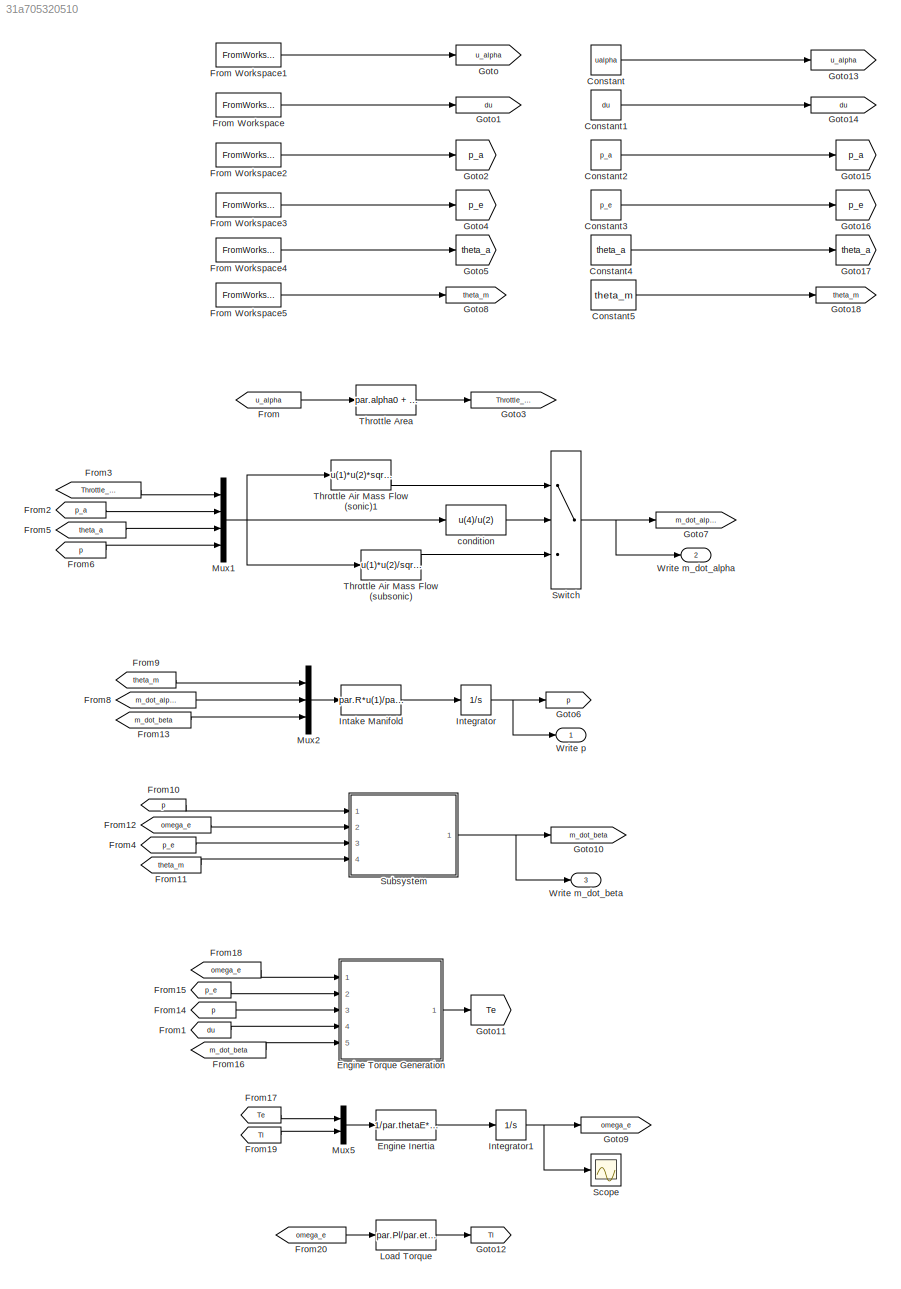
MODEL slx_31a705320510
KIND model
CONFIG AbsTol = auto
CONFIG EnableMultiTasking = off
CONFIG FixedStep = auto
CONFIG MaxStep = auto
CONFIG MinStep = auto
CONFIG RelTol = 1e-3
CONFIG SampleTimeConstraint = Unconstrained
CONFIG Solver = VariableStepAuto
CONFIG SolverName = VariableStepAuto
CONFIG StartTime = 0.0
CONFIG StopTime = 10.0
BLOCK [Constant] Constant
  Value = ualpha
BLOCK [Constant] Constant1
  Value = du
BLOCK [Constant] Constant2
  Value = p_a
BLOCK [Constant] Constant3
  Value = p_e
BLOCK [Constant] Constant4
  Value = theta_a
BLOCK [Constant] Constant5
  Value = theta_m
BLOCK [Fcn] Engine Inertia
  Expr = 1/par.thetaE*(u(1)-u(2))
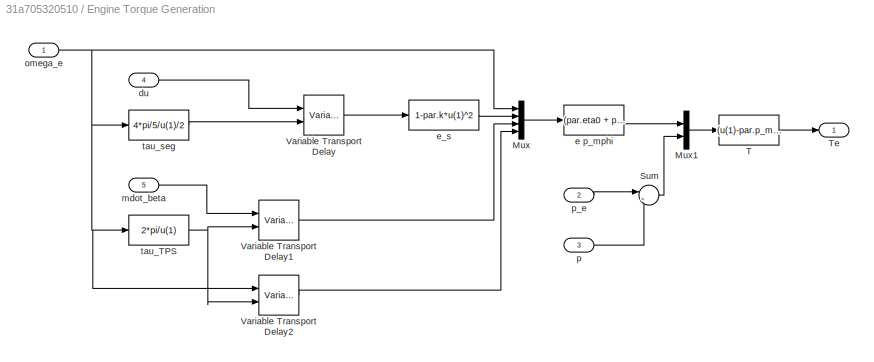
BLOCK [SubSystem] Engine Torque Generation
  Ports = [5, 1]
  RequestExecContextInheritance = off
  Variant = off
BLOCK [Mux] Engine Torque Generation/Mux
  DisplayOption = bar
  Ports = [4, 1]
BLOCK [Mux] Engine Torque Generation/Mux1
  DisplayOption = bar
  Inputs = 2
  Ports = [2, 1]
BLOCK [Sum] Engine Torque Generation/Sum
  IconShape = round
  InputSameDT = off
  Inputs = |+-
  OutDataTypeStr = Inherit: Inherit via internal rule
  Ports = [2, 1]
  SaturateOnIntegerOverflow = off
BLOCK [Fcn] Engine Torque Generation/T
  Expr = (u(1)-par.p_me0f - u(2))*par.Vd/4/pi
BLOCK [Outport] Engine Torque Generation/Te 
  IconDisplay = Port number
BLOCK [VariableTransportDelay] Engine Torque Generation/Variable Transport Delay
  InitialOutput = du
  MaximumDelay = 10
  Ports = [2, 1]
BLOCK [VariableTransportDelay] Engine Torque Generation/Variable Transport Delay1
  InitialOutput = 0.0044
  MaximumDelay = 10
  Ports = [2, 1]
BLOCK [VariableTransportDelay] Engine Torque Generation/Variable Transport Delay2
  InitialOutput = par.omegae0
  MaximumDelay = 10
  Ports = [2, 1]
BLOCK [Inport] Engine Torque Generation/du
  IconDisplay = Port number
  Port = 4
BLOCK [Fcn] Engine Torque Generation/e p_mphi
  Expr = (par.eta0 + par.eta1*u(1))*u(2)*par.Hl/par.Vd*4*pi/par.lambda/par.sigma0*u(3)/u(4)
BLOCK [Fcn] Engine Torque Generation/e_s
  Expr = 1-par.k*u(1)^2
BLOCK [Inport] Engine Torque Generation/mdot_beta
  IconDisplay = Port number
  Port = 5
BLOCK [Inport] Engine Torque Generation/omega_e
  IconDisplay = Port number
BLOCK [Inport] Engine Torque Generation/p
  IconDisplay = Port number
  Port = 3
BLOCK [Inport] Engine Torque Generation/p_e
  IconDisplay = Port number
  Port = 2
BLOCK [Fcn] Engine Torque Generation/tau_TPS
  Expr = 2*pi/u(1)
BLOCK [Fcn] Engine Torque Generation/tau_seg
  Expr = 4*pi/5/u(1)/2
BLOCK [From] From
  GotoTag = u_alpha
BLOCK [FromWorkspace] From Workspace
  Commented = on
  SampleTime = 0
  VariableName = du
  ZeroCross = on
BLOCK [FromWorkspace] From Workspace1
  Commented = on
  SampleTime = 0
  VariableName = ualpha
  ZeroCross = on
BLOCK [FromWorkspace] From Workspace2
  Commented = on
  SampleTime = 0
  VariableName = p_a
  ZeroCross = on
BLOCK [FromWorkspace] From Workspace3
  Commented = on
  SampleTime = 0
  VariableName = p_e
  ZeroCross = on
BLOCK [FromWorkspace] From Workspace4
  Commented = on
  SampleTime = 0
  VariableName = theta_a
  ZeroCross = on
BLOCK [FromWorkspace] From Workspace5
  Commented = on
  SampleTime = 0
  VariableName = theta_m
  ZeroCross = on
BLOCK [From] From1
  GotoTag = du
BLOCK [From] From10
  GotoTag = p
BLOCK [From] From11
  GotoTag = theta_m
BLOCK [From] From12
  GotoTag = omega_e
BLOCK [From] From13
  GotoTag = m_dot_beta
BLOCK [From] From14
  GotoTag = p
BLOCK [From] From15
  GotoTag = p_e
BLOCK [From] From16
  GotoTag = m_dot_beta
BLOCK [From] From17
  GotoTag = Te
BLOCK [From] From18
  GotoTag = omega_e
BLOCK [From] From19
  GotoTag = Tl
BLOCK [From] From2
  GotoTag = p_a
BLOCK [From] From20
  GotoTag = omega_e
BLOCK [From] From3
  GotoTag = Throttle_area
BLOCK [From] From4
  GotoTag = p_e
BLOCK [From] From5
  GotoTag = theta_a
BLOCK [From] From6
  GotoTag = p
BLOCK [From] From8
  GotoTag = m_dot_alpha
BLOCK [From] From9
  GotoTag = theta_m
BLOCK [Goto] Goto
  Commented = on
  GotoTag = u_alpha
BLOCK [Goto] Goto1
  Commented = on
  GotoTag = du
BLOCK [Goto] Goto10
  GotoTag = m_dot_beta
BLOCK [Goto] Goto11
  GotoTag = Te
BLOCK [Goto] Goto12
  GotoTag = Tl
BLOCK [Goto] Goto13
  GotoTag = u_alpha
BLOCK [Goto] Goto14
  GotoTag = du
BLOCK [Goto] Goto15
  GotoTag = p_a
BLOCK [Goto] Goto16
  GotoTag = p_e
BLOCK [Goto] Goto17
  GotoTag = theta_a
BLOCK [Goto] Goto18
  GotoTag = theta_m
BLOCK [Goto] Goto2
  Commented = on
  GotoTag = p_a
BLOCK [Goto] Goto3
  GotoTag = Throttle_area
BLOCK [Goto] Goto4
  Commented = on
  GotoTag = p_e
BLOCK [Goto] Goto5
  Commented = on
  GotoTag = theta_a
BLOCK [Goto] Goto6
  GotoTag = p
BLOCK [Goto] Goto7
  GotoTag = m_dot_alpha
BLOCK [Goto] Goto8
  Commented = on
  GotoTag = theta_m
BLOCK [Goto] Goto9
  GotoTag = omega_e
BLOCK [Fcn] Intake Manifold
  Expr = par.R*u(1)/par.Vm*(u(2)-u(3))
BLOCK [Integrator] Integrator
  InitialCondition = p_a*0.2
  Ports = [1, 1]
BLOCK [Integrator] Integrator1
  InitialCondition = par.omegae0
  Ports = [1, 1]
BLOCK [Fcn] Load Torque
  Expr = par.Pl/par.etaGen/u(1)
BLOCK [Mux] Mux1
  DisplayOption = bar
  Ports = [4, 1]
BLOCK [Mux] Mux2
  DisplayOption = bar
  Inputs = 3
  Ports = [3, 1]
BLOCK [Mux] Mux5
  DisplayOption = bar
  Inputs = 2
  Ports = [2, 1]
BLOCK [Scope] Scope
  NumInputPorts = 1
  Ports = [1]
  ScopeSpecificationString = Simulink.scopes.TimeScopeBlockCfg('CurrentConfiguration', extmgr.ConfigurationSet(extmgr.Configuration('Core','General UI',true),extmgr.Configuration('Core','Source UI',true),extmgr.Configuration('Sources','WiredSimulink',true),extmgr.Configuration('Visuals','Time Domain',true),extmgr.Configuration('Tools','Plot Navigation',true),extmgr.Configuration('Tools','Measurements',true)),'Version','2017b'...<+1ch>
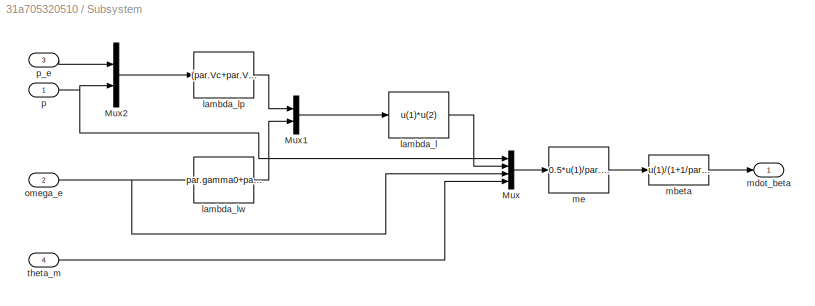
BLOCK [SubSystem] Subsystem
  Ports = [4, 1]
  RequestExecContextInheritance = off
  Variant = off
BLOCK [Mux] Subsystem/Mux
  DisplayOption = bar
  Ports = [4, 1]
BLOCK [Mux] Subsystem/Mux1
  DisplayOption = bar
  Inputs = 2
  Ports = [2, 1]
BLOCK [Mux] Subsystem/Mux2
  DisplayOption = bar
  Inputs = 2
  Ports = [2, 1]
BLOCK [Fcn] Subsystem/lambda_l
  Expr = u(1)*u(2)
BLOCK [Fcn] Subsystem/lambda_lp
  Expr = (par.Vc+par.Vd)/par.Vc-par.Vc/par.Vd*(u(1)/u(2))^(1/par.kappa)
BLOCK [Fcn] Subsystem/lambda_lw
  Expr = par.gamma0+par.gamma1*u(1)
BLOCK [Fcn] Subsystem/mbeta
  Expr = u(1)/(1+1/par.lambda/par.sigma0)
BLOCK [Outport] Subsystem/mdot_beta
  IconDisplay = Port number
BLOCK [Fcn] Subsystem/me
  Expr = 0.5*u(1)/par.R/u(4)*u(2)*par.Vd*u(3)/2/pi
BLOCK [Inport] Subsystem/omega_e
  IconDisplay = Port number
  Port = 2
BLOCK [Inport] Subsystem/p
  IconDisplay = Port number
BLOCK [Inport] Subsystem/p_e
  IconDisplay = Port number
  Port = 3
BLOCK [Inport] Subsystem/theta_m
  IconDisplay = Port number
  Port = 4
BLOCK [Switch] Switch
  SaturateOnIntegerOverflow = off
  Threshold = .5
BLOCK [Fcn] Throttle Air Mass Flow (sonic)1
  Expr = u(1)*u(2)*sqrt(2*u(4)/u(2)/par.R/u(3)*(1-(u(4)/u(2))))
BLOCK [Fcn] Throttle Air Mass Flow (subsonic)
  Expr = u(1)*u(2)/sqrt(par.R*u(3)/2)
BLOCK [Fcn] Throttle Area
  Expr = par.alpha0 + par.alpha1*u(1)
BLOCK [Outport] Write m_dot_alpha
  IconDisplay = Port number
  Port = 2
BLOCK [Outport] Write m_dot_beta
  IconDisplay = Port number
  Port = 3
BLOCK [Outport] Write p
  IconDisplay = Port number
BLOCK [Fcn] condition 
  Expr = u(4)/u(2)
LINE Constant1:1 -> Goto14:1
LINE Constant2:1 -> Goto15:1
LINE Constant3:1 -> Goto16:1
LINE Constant4:1 -> Goto17:1
LINE Constant5:1 -> Goto18:1
LINE Constant:1 -> Goto13:1
LINE Engine Inertia:1 -> Integrator1:1
LINE Engine Torque Generation/Mux1:1 -> Engine Torque Generation/T:1
LINE Engine Torque Generation/Mux:1 -> Engine Torque Generation/e p_mphi:1
LINE Engine Torque Generation/Sum:1 -> Engine Torque Generation/Mux1:2
LINE Engine Torque Generation/T:1 -> Engine Torque Generation/Te :1
LINE Engine Torque Generation/Variable Transport Delay1:1 -> Engine Torque Generation/Mux:3
LINE Engine Torque Generation/Variable Transport Delay2:1 -> Engine Torque Generation/Mux:4
LINE Engine Torque Generation/Variable Transport Delay:1 -> Engine Torque Generation/e_s:1
LINE Engine Torque Generation/du:1 -> Engine Torque Generation/Variable Transport Delay:1
LINE Engine Torque Generation/e p_mphi:1 -> Engine Torque Generation/Mux1:1
LINE Engine Torque Generation/e_s:1 -> Engine Torque Generation/Mux:2
LINE Engine Torque Generation/mdot_beta:1 -> Engine Torque Generation/Variable Transport Delay1:1
NET Engine Torque Generation/omega_e:1 -> Engine Torque Generation/Mux:1, Engine Torque Generation/Variable Transport Delay2:1, Engine Torque Generation/tau_TPS:1, Engine Torque Generation/tau_seg:1
LINE Engine Torque Generation/p:1 -> Engine Torque Generation/Sum:2
LINE Engine Torque Generation/p_e:1 -> Engine Torque Generation/Sum:1
NET Engine Torque Generation/tau_TPS:1 -> Engine Torque Generation/Variable Transport Delay1:2, Engine Torque Generation/Variable Transport Delay2:2
LINE Engine Torque Generation/tau_seg:1 -> Engine Torque Generation/Variable Transport Delay:2
LINE Engine Torque Generation:1 -> Goto11:1
LINE From Workspace1:1 -> Goto:1
LINE From Workspace2:1 -> Goto2:1
LINE From Workspace3:1 -> Goto4:1
LINE From Workspace4:1 -> Goto5:1
LINE From Workspace5:1 -> Goto8:1
LINE From Workspace:1 -> Goto1:1
LINE From10:1 -> Subsystem:1
LINE From11:1 -> Subsystem:4
LINE From12:1 -> Subsystem:2
LINE From13:1 -> Mux2:3
LINE From14:1 -> Engine Torque Generation:3
LINE From15:1 -> Engine Torque Generation:2
LINE From16:1 -> Engine Torque Generation:5
LINE From17:1 -> Mux5:1
LINE From18:1 -> Engine Torque Generation:1
LINE From19:1 -> Mux5:2
LINE From1:1 -> Engine Torque Generation:4
LINE From20:1 -> Load Torque:1
LINE From2:1 -> Mux1:2
LINE From3:1 -> Mux1:1
LINE From4:1 -> Subsystem:3
LINE From5:1 -> Mux1:3
LINE From6:1 -> Mux1:4
LINE From8:1 -> Mux2:2
LINE From9:1 -> Mux2:1
LINE From:1 -> Throttle Area:1
LINE Intake Manifold:1 -> Integrator:1
NET Integrator1:1 -> Goto9:1, Scope:1
NET Integrator:1 -> Goto6:1, Write p:1
LINE Load Torque:1 -> Goto12:1
NET Mux1:1 -> Throttle Air Mass Flow (sonic)1:1, Throttle Air Mass Flow (subsonic):1, condition :1
LINE Mux2:1 -> Intake Manifold:1
LINE Mux5:1 -> Engine Inertia:1
LINE Subsystem/Mux1:1 -> Subsystem/lambda_l:1
LINE Subsystem/Mux2:1 -> Subsystem/lambda_lp:1
LINE Subsystem/Mux:1 -> Subsystem/me:1
LINE Subsystem/lambda_l:1 -> Subsystem/Mux:2
LINE Subsystem/lambda_lp:1 -> Subsystem/Mux1:1
LINE Subsystem/lambda_lw:1 -> Subsystem/Mux1:2
LINE Subsystem/mbeta:1 -> Subsystem/mdot_beta:1
LINE Subsystem/me:1 -> Subsystem/mbeta:1
NET Subsystem/omega_e:1 -> Subsystem/Mux:3, Subsystem/lambda_lw:1
NET Subsystem/p:1 -> Subsystem/Mux2:2, Subsystem/Mux:1
LINE Subsystem/p_e:1 -> Subsystem/Mux2:1
LINE Subsystem/theta_m:1 -> Subsystem/Mux:4
NET Subsystem:1 -> Goto10:1, Write m_dot_beta:1
NET Switch:1 -> Goto7:1, Write m_dot_alpha:1
LINE Throttle Air Mass Flow (sonic)1:1 -> Switch:1
LINE Throttle Air Mass Flow (subsonic):1 -> Switch:3
LINE Throttle Area:1 -> Goto3:1
LINE condition :1 -> Switch:2
note: NET lines group one-source signal fan-out (src -> all destinations, sorted); 1:1 wires keep LINE
